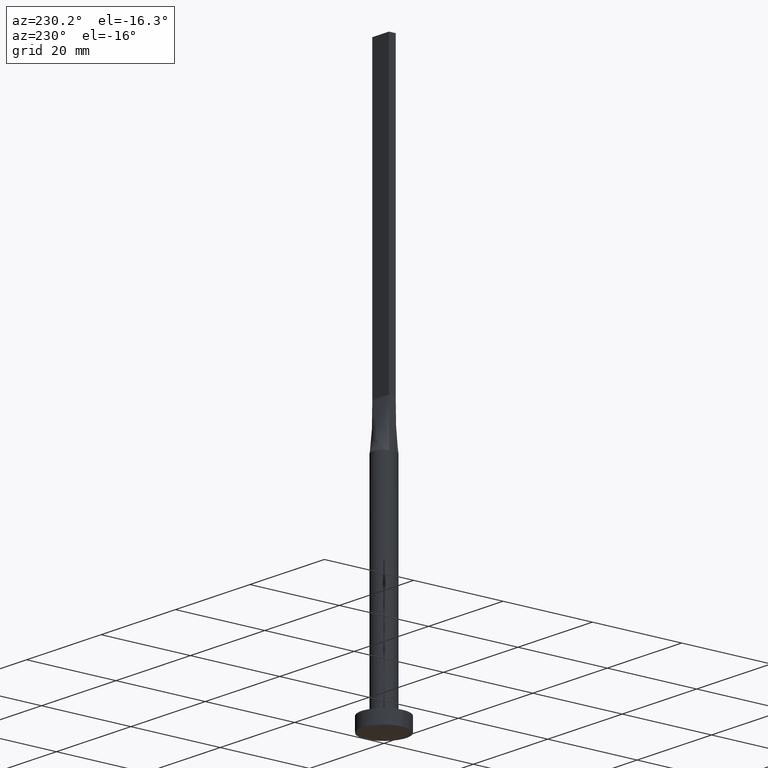
[diagram: clean part render]
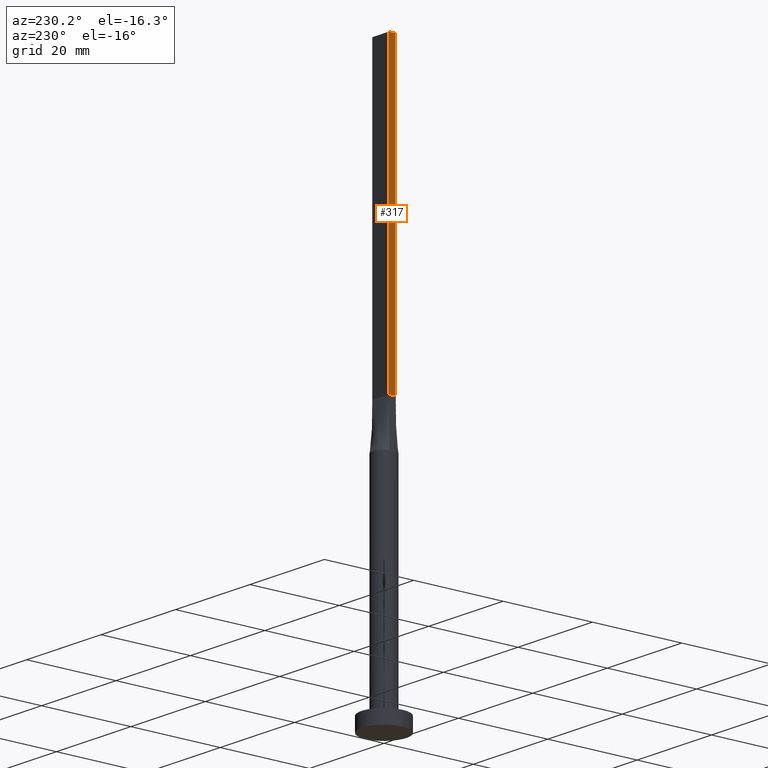
[diagram: same view with one face highlighted and labeled with its STEP entity id]
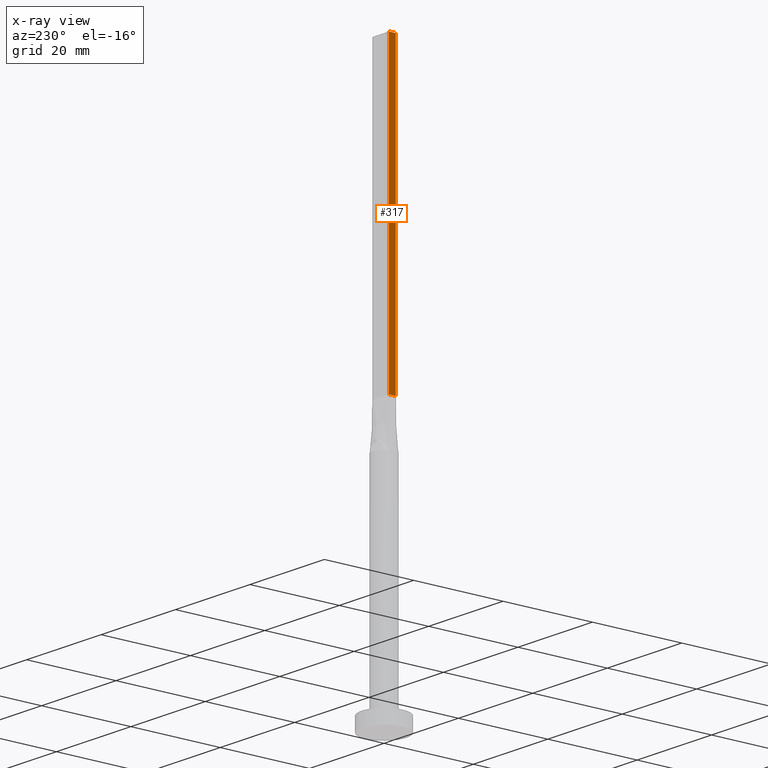
[diagram: x-ray of the same camera — body ghosted, the highlighted face saturated]
A machine part, auxiliary view. The second image highlights one B-rep face of the part: STEP entity #317.
The next image is the same camera in x-ray: the body ghosted, the highlighted face saturated — about 0% of this face is hidden behind the body in this view.
In plain terms, the highlighted planar face has unit normal (1, -0, 0).
Its self-contained STEP definition (entity closure, byte-faithful):
#2 = VERTEX_POINT ( 'NONE', #543 ) ;
#4 = LINE ( 'NONE', #175, #421 ) ;
#28 = EDGE_CURVE ( 'NONE', #445, #2, #4, .T. ) ;
#31 = ORIENTED_EDGE ( 'NONE', *, *, #489, .T. ) ;
#32 = CARTESIAN_POINT ( 'NONE',  ( -2.249999999999999556, 0.7500000000000002220, 125.0000000000000000 ) ) ;
#38 = AXIS2_PLACEMENT_3D ( 'NONE', #315, #69, #321 ) ;
#43 = ORIENTED_EDGE ( 'NONE', *, *, #28, .F. ) ;
#48 = EDGE_CURVE ( 'NONE', #322, #169, #314, .T. ) ;
#69 = DIRECTION ( 'NONE',  ( 1.000000000000000000, -2.891205793294678819E-16, 0.000000000000000000 ) ) ;
#78 = CARTESIAN_POINT ( 'NONE',  ( -2.250000000000000000, -0.7499999999999995559, 125.0000000000000000 ) ) ;
#134 = EDGE_LOOP ( 'NONE', ( #339, #465, #43, #31 ) ) ;
#165 = CARTESIAN_POINT ( 'NONE',  ( -2.249999999999999556, 0.7500000000000002220, 125.0000000000000000 ) ) ;
#166 = LINE ( 'NONE', #32, #452 ) ;
#169 = VERTEX_POINT ( 'NONE', #222 ) ;
#175 = CARTESIAN_POINT ( 'NONE',  ( -2.249999999999999556, 0.7500000000000002220, 125.0000000000000000 ) ) ;
#222 = CARTESIAN_POINT ( 'NONE',  ( -2.250000000000000000, -0.7499999999999995559, 60.00000000000000711 ) ) ;
#264 = DIRECTION ( 'NONE',  ( -2.891205793294678819E-16, -1.000000000000000000, 0.000000000000000000 ) ) ;
#275 = VECTOR ( 'NONE', #264, 1000.000000000000000 ) ;
#285 = DIRECTION ( 'NONE',  ( -0.000000000000000000, -0.000000000000000000, -1.000000000000000000 ) ) ;
#314 = LINE ( 'NONE', #515, #275 ) ;
#315 = CARTESIAN_POINT ( 'NONE',  ( -2.249999999999999556, 0.7500000000000002220, 125.0000000000000000 ) ) ;
#317 = ADVANCED_FACE ( 'NONE', ( #528 ), #478, .F. ) ;
#321 = DIRECTION ( 'NONE',  ( 2.891205793294678819E-16, 1.000000000000000000, 0.000000000000000000 ) ) ;
#322 = VERTEX_POINT ( 'NONE', #377 ) ;
#339 = ORIENTED_EDGE ( 'NONE', *, *, #48, .T. ) ;
#350 = DIRECTION ( 'NONE',  ( -2.891205793294678819E-16, -1.000000000000000000, 0.000000000000000000 ) ) ;
#377 = CARTESIAN_POINT ( 'NONE',  ( -2.249999999999999556, 0.7500000000000002220, 60.00000000000000711 ) ) ;
#421 = VECTOR ( 'NONE', #350, 1000.000000000000000 ) ;
#429 = VECTOR ( 'NONE', #285, 1000.000000000000000 ) ;
#443 = DIRECTION ( 'NONE',  ( -0.000000000000000000, -0.000000000000000000, -1.000000000000000000 ) ) ;
#445 = VERTEX_POINT ( 'NONE', #165 ) ;
#452 = VECTOR ( 'NONE', #443, 1000.000000000000000 ) ;
#459 = EDGE_CURVE ( 'NONE', #2, #169, #537, .T. ) ;
#465 = ORIENTED_EDGE ( 'NONE', *, *, #459, .F. ) ;
#478 = PLANE ( 'NONE',  #38 ) ;
#489 = EDGE_CURVE ( 'NONE', #445, #322, #166, .T. ) ;
#515 = CARTESIAN_POINT ( 'NONE',  ( -2.249999999999999556, 0.7500000000000002220, 60.00000000000000711 ) ) ;
#528 = FACE_OUTER_BOUND ( 'NONE', #134, .T. ) ;
#537 = LINE ( 'NONE', #78, #429 ) ;
#543 = CARTESIAN_POINT ( 'NONE',  ( -2.250000000000000000, -0.7499999999999995559, 125.0000000000000000 ) ) ;